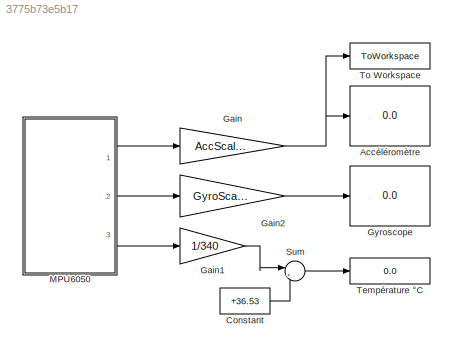
MODEL slx_3775b73e5b17
KIND model
CONFIG AbsTol = auto
CONFIG EnableMultiTasking = on
CONFIG FixedStep = 0.05
CONFIG InitFcn = Ts=0.05;\nAccScale=4;\nGyroScale=1000;
CONFIG MaxStep = auto
CONFIG MinStep = auto
CONFIG RelTol = 1e-3
CONFIG SampleTimeConstraint = Unconstrained
CONFIG Solver = FixedStepDiscrete
CONFIG SolverName = FixedStepDiscrete
CONFIG StartTime = 0.0
CONFIG StopTime = inf
BLOCK [Display] Accéléromètre
  Decimation = 1
  Ports = [1]
BLOCK [Constant] Constant
  OutDataTypeStr = single
  Value = +36.53
BLOCK [Gain] Gain
  Gain = AccScale/2^15
  OutDataTypeStr = single
  ParamDataTypeStr = Inherit: Inherit via internal rule
  SaturateOnIntegerOverflow = off
BLOCK [Gain] Gain1
  Gain = 1/340
  OutDataTypeStr = single
  ParamDataTypeStr = Inherit: Inherit via internal rule
  SaturateOnIntegerOverflow = off
BLOCK [Gain] Gain2
  Gain = GyroScale/2^15
  OutDataTypeStr = single
  ParamDataTypeStr = Inherit: Inherit via internal rule
  SaturateOnIntegerOverflow = off
BLOCK [Display] Gyroscope
  Decimation = 1
  Ports = [1]
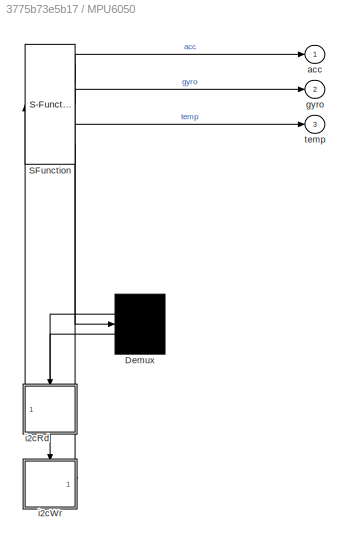
BLOCK [SubSystem] MPU6050
  ErrorFcn = Stateflow.Translate.translate
  PermitHierarchicalResolution = ExplicitOnly
  Ports = [0, 3]
  RequestExecContextInheritance = off
  SFBlockType = Chart
  TreatAsAtomicUnit = on
BLOCK [Demux] MPU6050/ Demux 
  Outputs = 2
  Ports = [1, 2]
BLOCK [S-Function] MPU6050/ SFunction 
  EnableBusSupport = on
  FunctionName = sf_sfun
  PortCounts = [1 5]
  Ports = [1, 5]
  SFcnIsStateOwnerBlock = off
  SFunctionDeploymentMode = off
  Tag = Stateflow S-Function 3
BLOCK [Outport] MPU6050/acc
  IconDisplay = Port number
BLOCK [Outport] MPU6050/gyro
  IconDisplay = Port number
  Port = 2
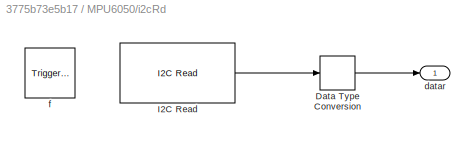
BLOCK [SubSystem] MPU6050/i2cRd
  Ports = [0, 1, 0, 1]
  PreDeleteFcn = Stateflow.SLINSF.SimulinkMan.removePreDeleteFcn
  RequestExecContextInheritance = off
  UndoDeleteFcn = Stateflow.SLINSF.SimulinkMan.restorePreDeleteFcn
BLOCK [DataTypeConversion] MPU6050/i2cRd/Data Type Conversion
  OutDataTypeStr = int16
  RndMeth = Floor
  SaturateOnIntegerOverflow = off
BLOCK [Reference] MPU6050/i2cRd/I2C Read  REF=arduinolib/I2C Read
  Ports = [0, 1]
  SourceBlock = arduinolib/I2C Read
  SourceProductBaseCode = ARDUINO
  SourceProductName = Simulink Support Package for Arduino Hardware
  SourceType = I2C Read
BLOCK [Outport] MPU6050/i2cRd/datar
  IconDisplay = Port number
  OutDataTypeStr = int16
  PortDimensions = 7
  SampleTime = Ts
  SignalType = real
  Unit = 1
  VarSizeSig = No
BLOCK [TriggerPort] MPU6050/i2cRd/f
  CopyFcn = Stateflow.SLINSF.SimulinkMan.removeBlockPreDeleteFcn
  Ports = []
  PreDeleteFcn = Stateflow.SLINSF.SimulinkMan.unsafePredeleteFcn
  SampleTime = -1
  SampleTimeType = periodic
  StatesWhenEnabling = held
  TriggerType = function-call
  VariantControl = Variant
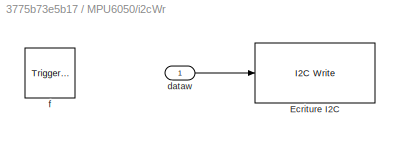
BLOCK [SubSystem] MPU6050/i2cWr
  Ports = [1, 0, 0, 1]
  PreDeleteFcn = Stateflow.SLINSF.SimulinkMan.removePreDeleteFcn
  RequestExecContextInheritance = off
  UndoDeleteFcn = Stateflow.SLINSF.SimulinkMan.restorePreDeleteFcn
BLOCK [Reference] MPU6050/i2cWr/Ecriture I2C  REF=arduinolib/I2C Write
  Ports = [1]
  Priority = 1
  SourceBlock = arduinolib/I2C Write
  SourceProductBaseCode = ARDUINO
  SourceProductName = Simulink Support Package for Arduino Hardware
  SourceType = I2C Write
BLOCK [Inport] MPU6050/i2cWr/dataw
  IconDisplay = Port number
  OutDataTypeStr = uint16
  PortDimensions = 1
  SignalType = real
  Unit = 1
  VarSizeSig = No
BLOCK [TriggerPort] MPU6050/i2cWr/f
  CopyFcn = Stateflow.SLINSF.SimulinkMan.removeBlockPreDeleteFcn
  Ports = []
  PreDeleteFcn = Stateflow.SLINSF.SimulinkMan.unsafePredeleteFcn
  SampleTime = -1
  SampleTimeType = periodic
  StatesWhenEnabling = held
  TriggerType = function-call
  VariantControl = Variant
BLOCK [Outport] MPU6050/temp
  IconDisplay = Port number
  Port = 3
BLOCK [Sum] Sum
  IconShape = round
  InputSameDT = off
  Inputs = |++
  OutDataTypeStr = Inherit: Inherit via internal rule
  Ports = [2, 1]
  SaturateOnIntegerOverflow = off
BLOCK [Display] Température °C
  Decimation = 1
  Ports = [1]
BLOCK [ToWorkspace] To Workspace
  FixptAsFi = on
  MaxDataPoints = inf
  Ports = [1]
  SampleTime = Ts
  VariableName = accelerometre
LINE Constant:1 -> Sum:2
LINE Gain1:1 -> Sum:1
LINE Gain2:1 -> Gyroscope:1
NET Gain:1 -> Accéléromètre:1, To Workspace:1
LINE MPU6050:1 -> Gain:1
LINE MPU6050:2 -> Gain2:1
LINE MPU6050:3 -> Gain1:1
LINE Sum:1 -> Température °C:1
note: NET lines group one-source signal fan-out (src -> all destinations, sorted); 1:1 wires keep LINE
CHART MPU6050 states=4 transitions=2
  STATE_LABEL "initialisation\nen:\ni2cWr(uint16(hex2dec( '6B00' )));%Power on\ni2cWr(uint16(hex2dec( '1B10' )));%gyro 0x10=1000°/s\ni2cWr(uint16(hex2dec( '1C08' )));%acce 0x08= 4G\ni2cWr(uint16(hex2dec( '1A06' )));%filtrage+actu 0x06= 19ms\ni2cWr(uint16(hex2dec( '3710' )));%INT_PIN_CFG\ni2cWr(uint16(hex2dec( '3800' )));%Interrupt Enable 0 désactivé\n"
  STATE_LABEL 'i2cWr(dataw)'
  STATE_LABEL 'datar = i2cRd'
  STATE_LABEL 'Lecture_acceleration3_axes\nduring:\nval=i2cRd;\nacc=val(1:3);\ngyro=val(5:7);\ntemp=val(4:4);'
